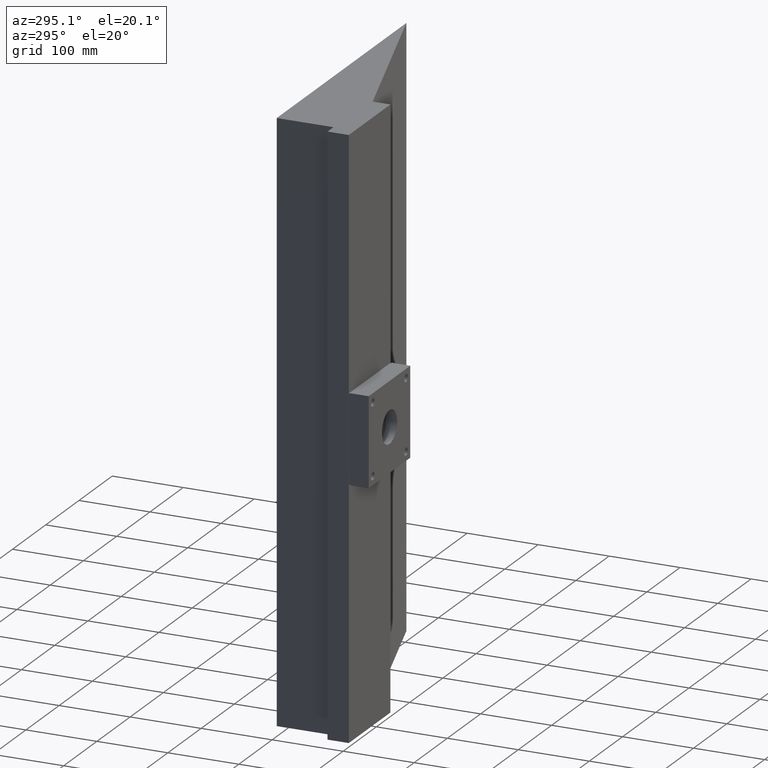
[diagram: clean part render]
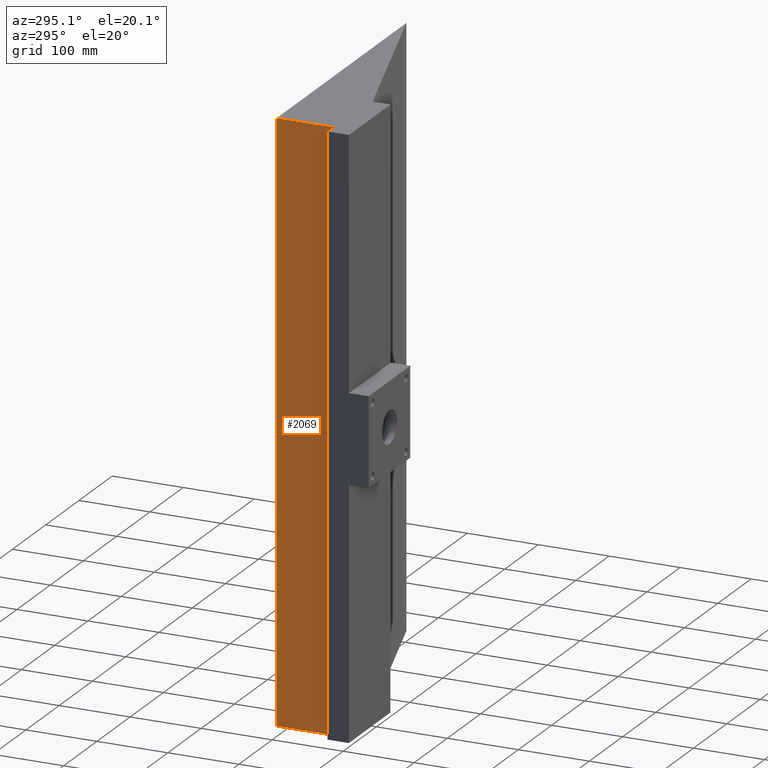
[diagram: same view with one face highlighted and labeled with its STEP entity id]
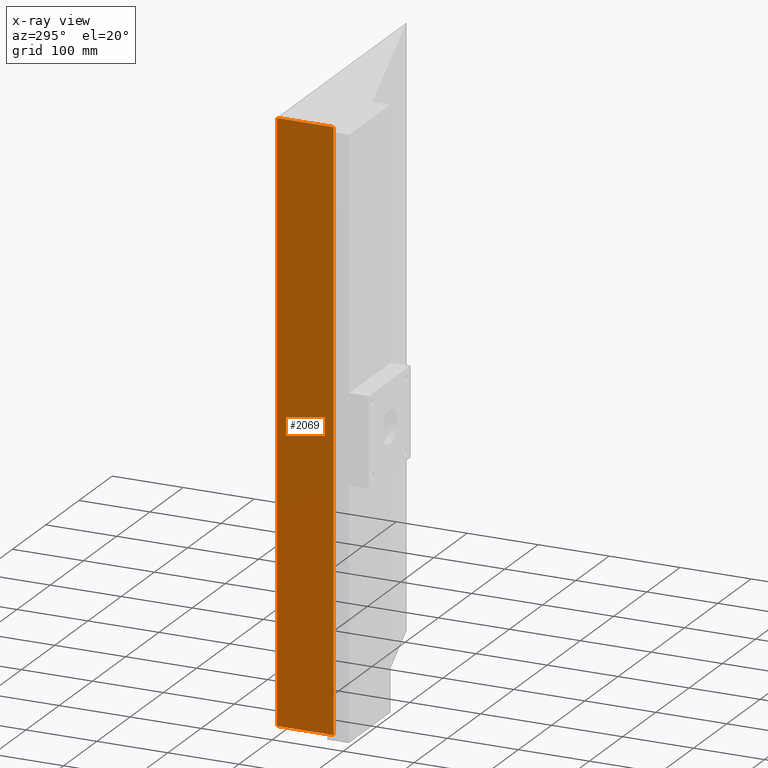
[diagram: x-ray of the same camera — body ghosted, the highlighted face saturated]
A machine part, auxiliary view. The second image highlights one B-rep face of the part: STEP entity #2069.
The next image is the same camera in x-ray: the body ghosted, the highlighted face saturated — about 0% of this face is hidden behind the body in this view.
In plain terms, the highlighted planar face has unit normal (1, 0, 0).
Its self-contained STEP definition (entity closure, byte-faithful):
#69 = EDGE_CURVE ( 'NONE', #726, #2829, #2106, .T. ) ;
#159 = DIRECTION ( 'NONE',  ( -0.0000000000000000000, -0.0000000000000000000, -1.000000000000000000 ) ) ;
#180 = CARTESIAN_POINT ( 'NONE',  ( -86.11638246079655800, -80.00000000000001400, -413.0000000000000000 ) ) ;
#398 = EDGE_CURVE ( 'NONE', #2879, #726, #443, .T. ) ;
#443 = LINE ( 'NONE', #805, #604 ) ;
#533 = CARTESIAN_POINT ( 'NONE',  ( -86.11638246079655800, -80.00000000000001400, 413.0000000000000000 ) ) ;
#575 = DIRECTION ( 'NONE',  ( 0.0000000000000000000, 0.0000000000000000000, -1.000000000000000000 ) ) ;
#588 = DIRECTION ( 'NONE',  ( -0.0000000000000000000, -1.000000000000000000, -0.0000000000000000000 ) ) ;
#604 = VECTOR ( 'NONE', #159, 1000.000000000000000 ) ;
#640 = AXIS2_PLACEMENT_3D ( 'NONE', #859, #858, #575 ) ;
#722 = VECTOR ( 'NONE', #2075, 1000.000000000000000 ) ;
#726 = VERTEX_POINT ( 'NONE', #2635 ) ;
#800 = LINE ( 'NONE', #533, #1984 ) ;
#805 = CARTESIAN_POINT ( 'NONE',  ( -86.11638246079655800, 0.0000000000000000000, 413.0000000000000000 ) ) ;
#834 = EDGE_CURVE ( 'NONE', #1730, #2829, #1706, .T. ) ;
#858 = DIRECTION ( 'NONE',  ( 1.000000000000000000, 0.0000000000000000000, 0.0000000000000000000 ) ) ;
#859 = CARTESIAN_POINT ( 'NONE',  ( -86.11638246079655800, -80.00000000000001400, 413.0000000000000000 ) ) ;
#893 = PLANE ( 'NONE',  #640 ) ;
#1190 = CARTESIAN_POINT ( 'NONE',  ( -86.11638246079655800, -80.00000000000001400, 413.0000000000000000 ) ) ;
#1198 = ORIENTED_EDGE ( 'NONE', *, *, #69, .T. ) ;
#1208 = CARTESIAN_POINT ( 'NONE',  ( -86.11638246079655800, 0.0000000000000000000, 413.0000000000000000 ) ) ;
#1634 = CARTESIAN_POINT ( 'NONE',  ( -86.11638246079655800, -80.00000000000001400, 413.0000000000000000 ) ) ;
#1646 = EDGE_LOOP ( 'NONE', ( #1198, #1879, #2574, #1960 ) ) ;
#1671 = VECTOR ( 'NONE', #2544, 1000.000000000000000 ) ;
#1706 = LINE ( 'NONE', #1634, #1671 ) ;
#1730 = VERTEX_POINT ( 'NONE', #1190 ) ;
#1879 = ORIENTED_EDGE ( 'NONE', *, *, #834, .F. ) ;
#1960 = ORIENTED_EDGE ( 'NONE', *, *, #398, .T. ) ;
#1984 = VECTOR ( 'NONE', #588, 1000.000000000000000 ) ;
#2069 = ADVANCED_FACE ( 'NONE', ( #2801 ), #893, .F. ) ;
#2075 = DIRECTION ( 'NONE',  ( -0.0000000000000000000, -1.000000000000000000, -0.0000000000000000000 ) ) ;
#2106 = LINE ( 'NONE', #2624, #722 ) ;
#2229 = EDGE_CURVE ( 'NONE', #2879, #1730, #800, .T. ) ;
#2544 = DIRECTION ( 'NONE',  ( -0.0000000000000000000, -0.0000000000000000000, -1.000000000000000000 ) ) ;
#2574 = ORIENTED_EDGE ( 'NONE', *, *, #2229, .F. ) ;
#2624 = CARTESIAN_POINT ( 'NONE',  ( -86.11638246079655800, -80.00000000000001400, -413.0000000000000000 ) ) ;
#2635 = CARTESIAN_POINT ( 'NONE',  ( -86.11638246079655800, 0.0000000000000000000, -413.0000000000000000 ) ) ;
#2801 = FACE_OUTER_BOUND ( 'NONE', #1646, .T. ) ;
#2829 = VERTEX_POINT ( 'NONE', #180 ) ;
#2879 = VERTEX_POINT ( 'NONE', #1208 ) ;